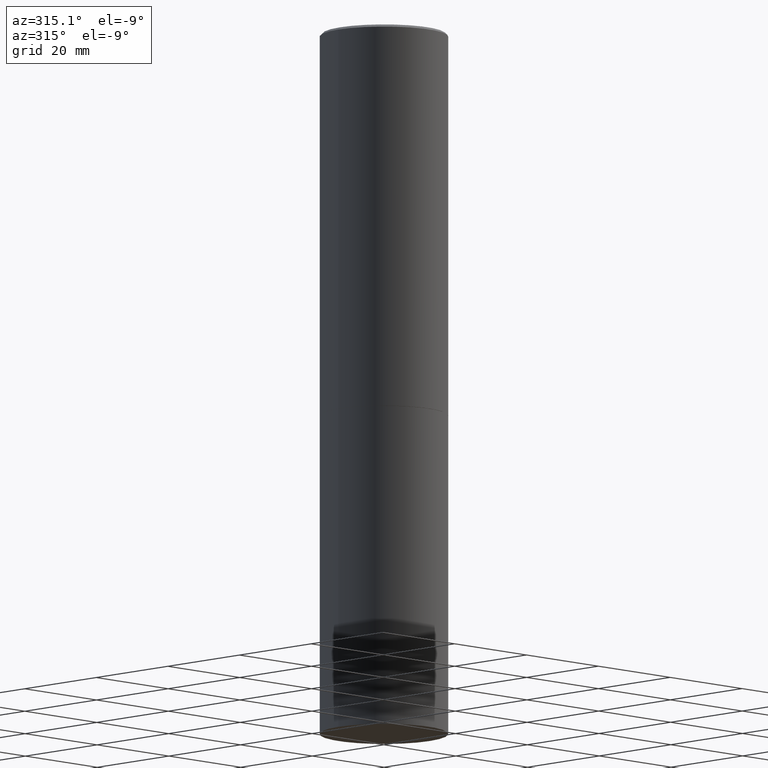
[diagram: clean part render]
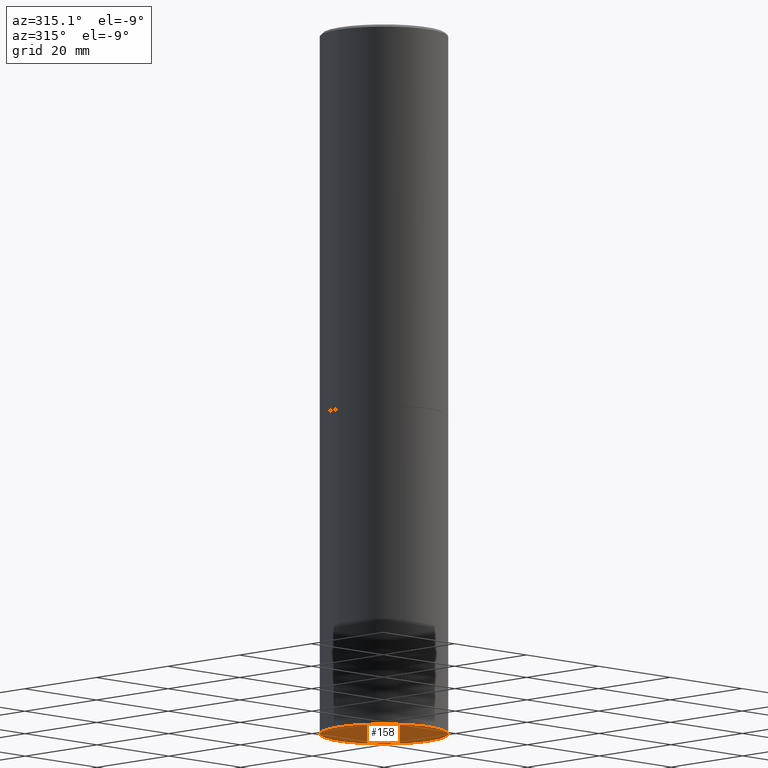
[diagram: same view with one face highlighted and labeled with its STEP entity id]
A machine part, auxiliary view. The second image highlights one B-rep face of the part: STEP entity #158.
In plain terms, the highlighted planar face has unit normal (0, -0, -1).
Its self-contained STEP definition (entity closure, byte-faithful):
#4 = FACE_OUTER_BOUND ( 'NONE', #101, .T. ) ;
#5 = DIRECTION ( 'NONE',  ( -1.000000000000000000, 6.982962677686265922E-15, -4.876176775795935793E-29 ) ) ;
#12 = CARTESIAN_POINT ( 'NONE',  ( 1.345007843401824904E-28, -1.920314736363729972E-14, -5.500000000000000000 ) ) ;
#17 = CARTESIAN_POINT ( 'NONE',  ( 0.5000000000000000000, -2.269462870248043307E-14, -5.500000000000000000 ) ) ;
#36 = DIRECTION ( 'NONE',  ( 1.000000000000000000, -6.982962677686262766E-15, 0.000000000000000000 ) ) ;
#45 = VERTEX_POINT ( 'NONE', #17 ) ;
#67 = CIRCLE ( 'NONE', #214, 0.5000000000000000000 ) ;
#76 = ORIENTED_EDGE ( 'NONE', *, *, #269, .F. ) ;
#83 = CARTESIAN_POINT ( 'NONE',  ( -0.5000000000000000000, -1.128608201128286632E-14, -5.500000000000000000 ) ) ;
#85 = CARTESIAN_POINT ( 'NONE',  ( 3.491481338843267462E-15, 0.4999999999999807931, -5.500000000000001776 ) ) ;
#101 = EDGE_LOOP ( 'NONE', ( #226, #76 ) ) ;
#134 = EDGE_CURVE ( 'NONE', #45, #143, #67, .T. ) ;
#143 = VERTEX_POINT ( 'NONE', #83 ) ;
#145 = CARTESIAN_POINT ( 'NONE',  ( 1.345007843401824904E-28, -1.920314736363729972E-14, -5.500000000000000000 ) ) ;
#158 = ADVANCED_FACE ( 'NONE', ( #4 ), #235, .T. ) ;
#190 = CIRCLE ( 'NONE', #288, 0.5000000000000000000 ) ;
#208 = DIRECTION ( 'NONE',  ( -2.445468806185136597E-29, 3.491481338843145583E-15, 1.000000000000000000 ) ) ;
#209 = AXIS2_PLACEMENT_3D ( 'NONE', #85, #305, #5 ) ;
#214 = AXIS2_PLACEMENT_3D ( 'NONE', #12, #208, #36 ) ;
#226 = ORIENTED_EDGE ( 'NONE', *, *, #134, .F. ) ;
#235 = PLANE ( 'NONE',  #209 ) ;
#254 = DIRECTION ( 'NONE',  ( -2.445468806185136597E-29, 3.491481338843145583E-15, 1.000000000000000000 ) ) ;
#269 = EDGE_CURVE ( 'NONE', #143, #45, #190, .T. ) ;
#288 = AXIS2_PLACEMENT_3D ( 'NONE', #145, #254, #304 ) ;
#304 = DIRECTION ( 'NONE',  ( 1.000000000000000000, -6.982962677686262766E-15, 0.000000000000000000 ) ) ;
#305 = DIRECTION ( 'NONE',  ( 2.438088387897960049E-29, -3.491481338843145188E-15, -1.000000000000000000 ) ) ;